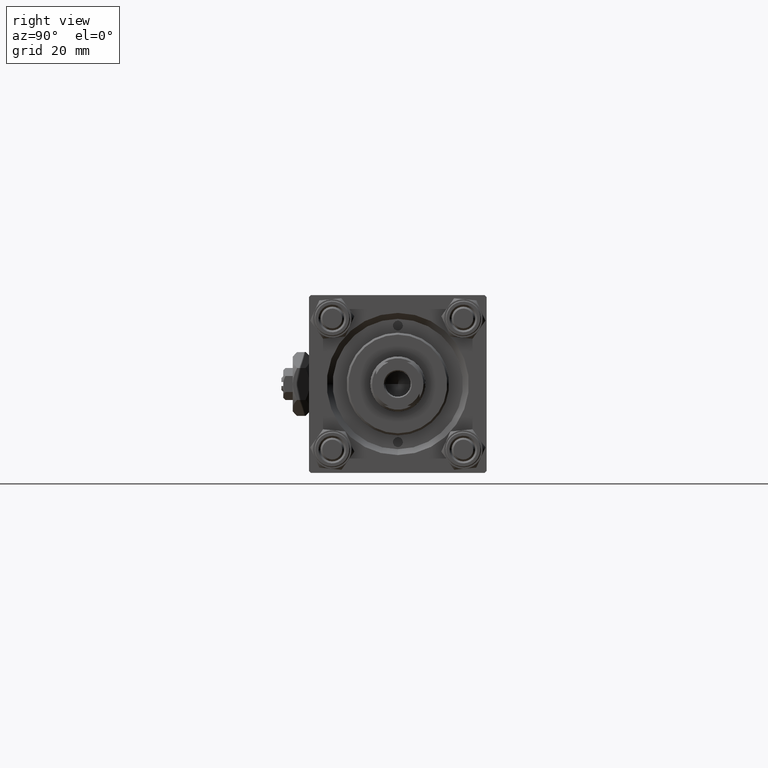
[diagram: clean part render]
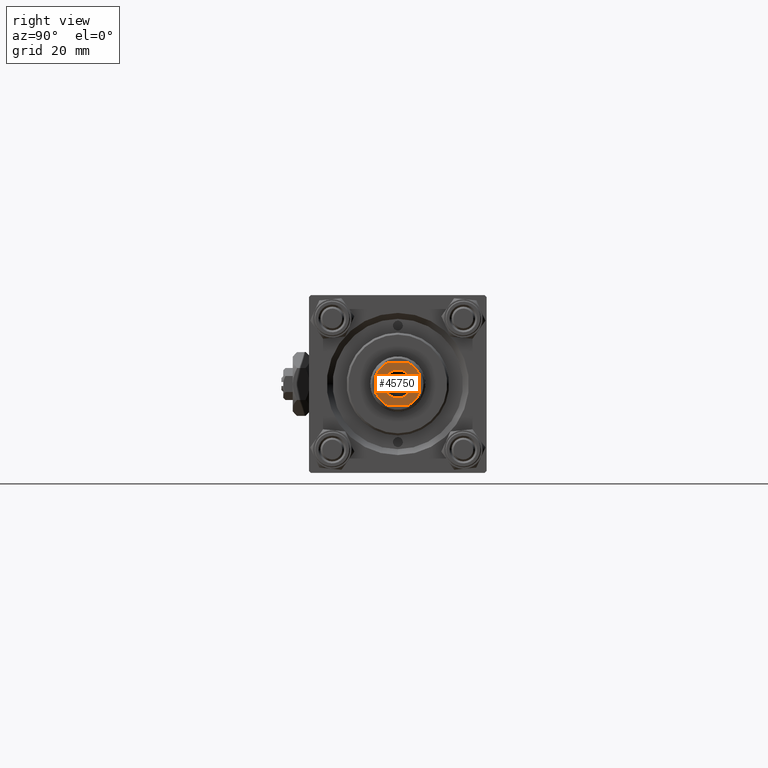
[diagram: same view with one face highlighted and labeled with its STEP entity id]
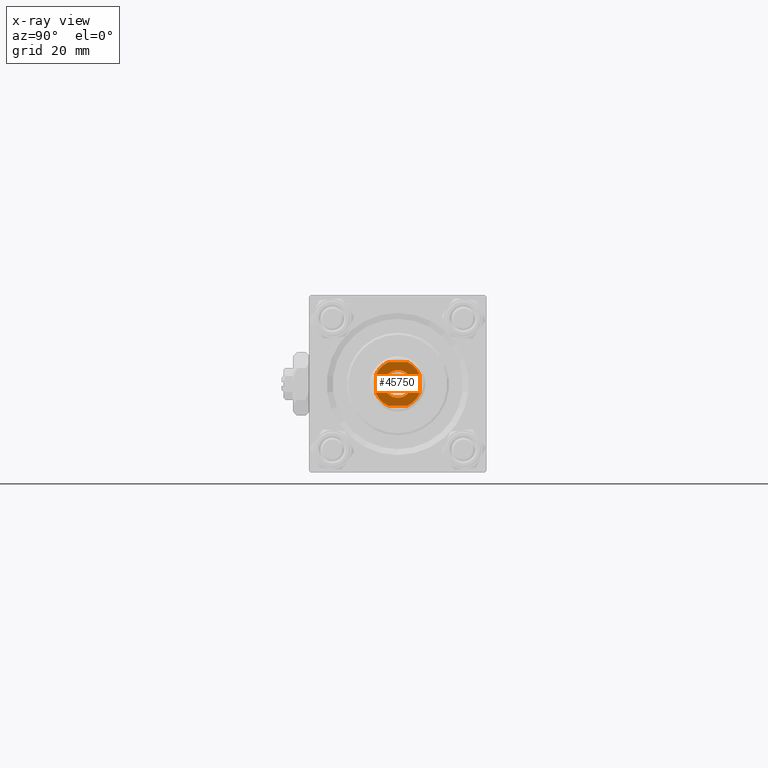
[diagram: x-ray of the same camera — body ghosted, the highlighted face saturated]
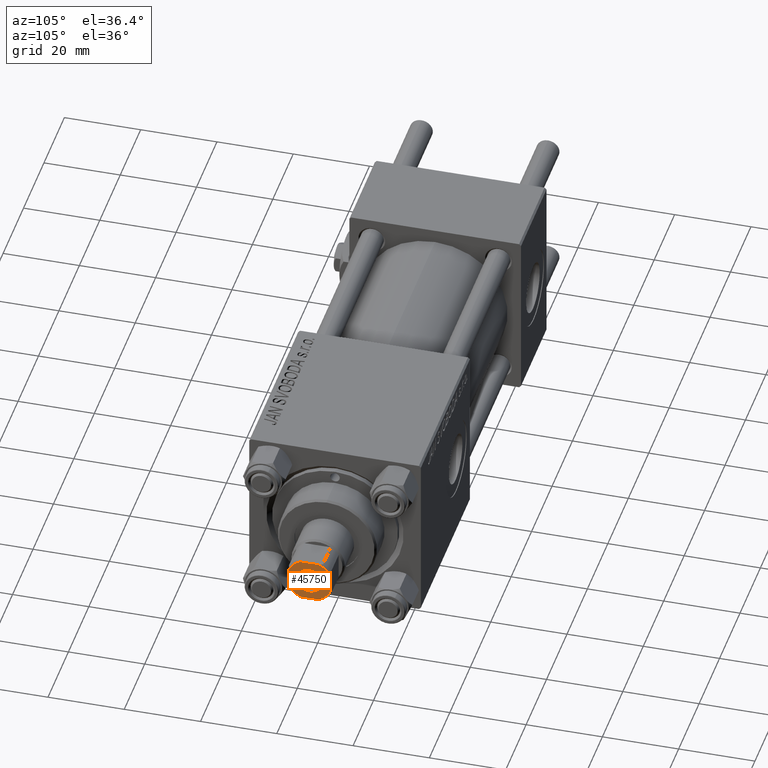
[diagram: same view with one face highlighted and labeled with its STEP entity id]
A machine part, right view. The second image highlights one B-rep face of the part: STEP entity #45750.
The next image is the same camera in x-ray: the body ghosted, the highlighted face saturated — about 0% of this face is hidden behind the body in this view.
A second angle (auxiliary view) of the same face is appended — the face is thin or edge-on in the first view.
In plain terms, the highlighted planar face has unit normal (1, 0, -0).
Its self-contained STEP definition (entity closure, byte-faithful):
#712 = CARTESIAN_POINT ( 'NONE',  ( -5.500000000000000000, -2.397915761656382649, 123.0000000000000000 ) ) ;
#974 = VERTEX_POINT ( 'NONE', #50217 ) ;
#2022 = DIRECTION ( 'NONE',  ( -0.000000000000000000, 0.000000000000000000, 1.000000000000000000 ) ) ;
#3124 = LINE ( 'NONE', #43391, #10749 ) ;
#3813 = AXIS2_PLACEMENT_3D ( 'NONE', #42341, #19052, #7557 ) ;
#3872 = EDGE_CURVE ( 'NONE', #50319, #5064, #3124, .T. ) ;
#3896 = EDGE_CURVE ( 'NONE', #974, #27081, #46635, .T. ) ;
#5064 = VERTEX_POINT ( 'NONE', #15847 ) ;
#5821 = CARTESIAN_POINT ( 'NONE',  ( -5.500000000000000000, 2.397915761656292499, 123.0000000000000000 ) ) ;
#5889 = CIRCLE ( 'NONE', #40113, 6.000000000000008882 ) ;
#5898 = DIRECTION ( 'NONE',  ( -0.000000000000000000, 0.000000000000000000, 1.000000000000000000 ) ) ;
#6112 = EDGE_CURVE ( 'NONE', #37341, #36463, #8245, .T. ) ;
#6836 = LINE ( 'NONE', #22781, #16043 ) ;
#7557 = DIRECTION ( 'NONE',  ( 1.000000000000000000, 0.000000000000000000, 0.000000000000000000 ) ) ;
#8016 = ORIENTED_EDGE ( 'NONE', *, *, #3872, .T. ) ;
#8054 = CIRCLE ( 'NONE', #19735, 5.999999999999992006 ) ;
#8172 = CARTESIAN_POINT ( 'NONE',  ( 2.397915761656381761, -5.500000000000000000, 123.0000000000000000 ) ) ;
#8245 = LINE ( 'NONE', #33066, #11700 ) ;
#8339 = DIRECTION ( 'NONE',  ( -1.000000000000000000, -7.885106708985487801E-17, -0.000000000000000000 ) ) ;
#9925 = FACE_BOUND ( 'NONE', #26873, .T. ) ;
#10196 = CARTESIAN_POINT ( 'NONE',  ( 2.397915761656340017, 5.500000000000000888, 123.0000000000000000 ) ) ;
#10749 = VECTOR ( 'NONE', #8339, 1000.000000000000000 ) ;
#11242 = DIRECTION ( 'NONE',  ( 1.000000000000000000, 0.000000000000000000, 0.000000000000000000 ) ) ;
#11700 = VECTOR ( 'NONE', #20022, 1000.000000000000000 ) ;
#11923 = EDGE_CURVE ( 'NONE', #5064, #21761, #51328, .T. ) ;
#12666 = LINE ( 'NONE', #44287, #50756 ) ;
#13699 = EDGE_CURVE ( 'NONE', #27081, #974, #31335, .T. ) ;
#14111 = PLANE ( 'NONE',  #40858 ) ;
#14119 = EDGE_CURVE ( 'NONE', #21228, #37341, #17200, .T. ) ;
#14735 = ORIENTED_EDGE ( 'NONE', *, *, #14119, .T. ) ;
#14820 = CARTESIAN_POINT ( 'NONE',  ( 0.000000000000000000, 0.000000000000000000, 123.0000000000000000 ) ) ;
#15157 = EDGE_CURVE ( 'NONE', #33387, #50319, #8054, .T. ) ;
#15756 = CARTESIAN_POINT ( 'NONE',  ( 0.000000000000000000, 0.000000000000000000, 123.0000000000000000 ) ) ;
#15847 = CARTESIAN_POINT ( 'NONE',  ( -2.397915761656291167, 5.500000000000000888, 123.0000000000000000 ) ) ;
#16043 = VECTOR ( 'NONE', #38724, 1000.000000000000000 ) ;
#17200 = CIRCLE ( 'NONE', #20510, 6.000000000000008882 ) ;
#17909 = CARTESIAN_POINT ( 'NONE',  ( 0.000000000000000000, 0.000000000000000000, 123.0000000000000000 ) ) ;
#19052 = DIRECTION ( 'NONE',  ( 0.000000000000000000, -0.000000000000000000, -1.000000000000000000 ) ) ;
#19343 = CARTESIAN_POINT ( 'NONE',  ( 0.000000000000000000, 0.000000000000000000, 123.0000000000000000 ) ) ;
#19666 = DIRECTION ( 'NONE',  ( -0.000000000000000000, 0.000000000000000000, 1.000000000000000000 ) ) ;
#19735 = AXIS2_PLACEMENT_3D ( 'NONE', #17909, #5898, #33856 ) ;
#20022 = DIRECTION ( 'NONE',  ( 1.000000000000000000, 0.000000000000000000, 0.000000000000000000 ) ) ;
#20200 = ORIENTED_EDGE ( 'NONE', *, *, #3896, .T. ) ;
#20510 = AXIS2_PLACEMENT_3D ( 'NONE', #32760, #36947, #40866 ) ;
#21228 = VERTEX_POINT ( 'NONE', #712 ) ;
#21677 = CARTESIAN_POINT ( 'NONE',  ( 0.000000000000000000, 0.000000000000000000, 123.0000000000000000 ) ) ;
#21761 = VERTEX_POINT ( 'NONE', #5821 ) ;
#22379 = CARTESIAN_POINT ( 'NONE',  ( 5.500000000000000000, -2.397915761656381761, 123.0000000000000000 ) ) ;
#22714 = DIRECTION ( 'NONE',  ( -0.000000000000000000, 0.000000000000000000, 1.000000000000000000 ) ) ;
#22781 = CARTESIAN_POINT ( 'NONE',  ( 5.499999999999999112, 5.500000000000000888, 123.0000000000000000 ) ) ;
#22977 = EDGE_CURVE ( 'NONE', #21761, #21228, #12666, .T. ) ;
#25547 = DIRECTION ( 'NONE',  ( 1.000000000000000000, 0.000000000000000000, 0.000000000000000000 ) ) ;
#25778 = AXIS2_PLACEMENT_3D ( 'NONE', #19343, #44162, #11242 ) ;
#25865 = FACE_OUTER_BOUND ( 'NONE', #40007, .T. ) ;
#26873 = EDGE_LOOP ( 'NONE', ( #20200, #40508 ) ) ;
#27081 = VERTEX_POINT ( 'NONE', #47388 ) ;
#30042 = ORIENTED_EDGE ( 'NONE', *, *, #11923, .T. ) ;
#30537 = DIRECTION ( 'NONE',  ( 1.000000000000000000, 0.000000000000000000, 0.000000000000000000 ) ) ;
#31300 = ORIENTED_EDGE ( 'NONE', *, *, #22977, .T. ) ;
#31335 = CIRCLE ( 'NONE', #3813, 3.550000000000011813 ) ;
#32052 = ORIENTED_EDGE ( 'NONE', *, *, #36699, .T. ) ;
#32124 = AXIS2_PLACEMENT_3D ( 'NONE', #15756, #19666, #35355 ) ;
#32760 = CARTESIAN_POINT ( 'NONE',  ( 0.000000000000000000, 0.000000000000000000, 123.0000000000000000 ) ) ;
#33018 = DIRECTION ( 'NONE',  ( 1.577021341797097560E-16, -1.000000000000000000, 0.000000000000000000 ) ) ;
#33066 = CARTESIAN_POINT ( 'NONE',  ( -5.499999999999999112, -5.500000000000000000, 123.0000000000000000 ) ) ;
#33387 = VERTEX_POINT ( 'NONE', #51306 ) ;
#33856 = DIRECTION ( 'NONE',  ( 1.000000000000000000, 0.000000000000000000, 0.000000000000000000 ) ) ;
#35170 = VERTEX_POINT ( 'NONE', #22379 ) ;
#35355 = DIRECTION ( 'NONE',  ( 1.000000000000000000, 0.000000000000000000, 0.000000000000000000 ) ) ;
#36463 = VERTEX_POINT ( 'NONE', #8172 ) ;
#36632 = ORIENTED_EDGE ( 'NONE', *, *, #6112, .T. ) ;
#36699 = EDGE_CURVE ( 'NONE', #35170, #33387, #6836, .T. ) ;
#36947 = DIRECTION ( 'NONE',  ( -0.000000000000000000, 0.000000000000000000, 1.000000000000000000 ) ) ;
#37341 = VERTEX_POINT ( 'NONE', #42980 ) ;
#38724 = DIRECTION ( 'NONE',  ( -1.577021341797097560E-16, 1.000000000000000000, -0.000000000000000000 ) ) ;
#40007 = EDGE_LOOP ( 'NONE', ( #32052, #48790, #8016, #30042, #31300, #14735, #36632, #46520 ) ) ;
#40113 = AXIS2_PLACEMENT_3D ( 'NONE', #14820, #2022, #25547 ) ;
#40508 = ORIENTED_EDGE ( 'NONE', *, *, #13699, .T. ) ;
#40858 = AXIS2_PLACEMENT_3D ( 'NONE', #21677, #22714, #30537 ) ;
#40866 = DIRECTION ( 'NONE',  ( 1.000000000000000000, 0.000000000000000000, 0.000000000000000000 ) ) ;
#42341 = CARTESIAN_POINT ( 'NONE',  ( 0.000000000000000000, 0.000000000000000000, 123.0000000000000000 ) ) ;
#42980 = CARTESIAN_POINT ( 'NONE',  ( -2.397915761656381761, -5.500000000000000000, 123.0000000000000000 ) ) ;
#43391 = CARTESIAN_POINT ( 'NONE',  ( -5.500000000000000888, 5.500000000000000000, 123.0000000000000000 ) ) ;
#44162 = DIRECTION ( 'NONE',  ( 0.000000000000000000, -0.000000000000000000, -1.000000000000000000 ) ) ;
#44287 = CARTESIAN_POINT ( 'NONE',  ( -5.500000000000000888, 5.500000000000000000, 123.0000000000000000 ) ) ;
#45750 = ADVANCED_FACE ( 'NONE', ( #9925, #25865 ), #14111, .T. ) ;
#46520 = ORIENTED_EDGE ( 'NONE', *, *, #51393, .T. ) ;
#46635 = CIRCLE ( 'NONE', #25778, 3.550000000000011813 ) ;
#47388 = CARTESIAN_POINT ( 'NONE',  ( -3.550000000000011813, 4.347496136973118171E-16, 123.0000000000000000 ) ) ;
#48790 = ORIENTED_EDGE ( 'NONE', *, *, #15157, .T. ) ;
#50217 = CARTESIAN_POINT ( 'NONE',  ( 3.550000000000011813, 0.000000000000000000, 123.0000000000000000 ) ) ;
#50319 = VERTEX_POINT ( 'NONE', #10196 ) ;
#50756 = VECTOR ( 'NONE', #33018, 1000.000000000000000 ) ;
#51306 = CARTESIAN_POINT ( 'NONE',  ( 5.500000000000000000, 2.397915761656341793, 123.0000000000000000 ) ) ;
#51328 = CIRCLE ( 'NONE', #32124, 5.999999999999973355 ) ;
#51393 = EDGE_CURVE ( 'NONE', #36463, #35170, #5889, .T. ) ;